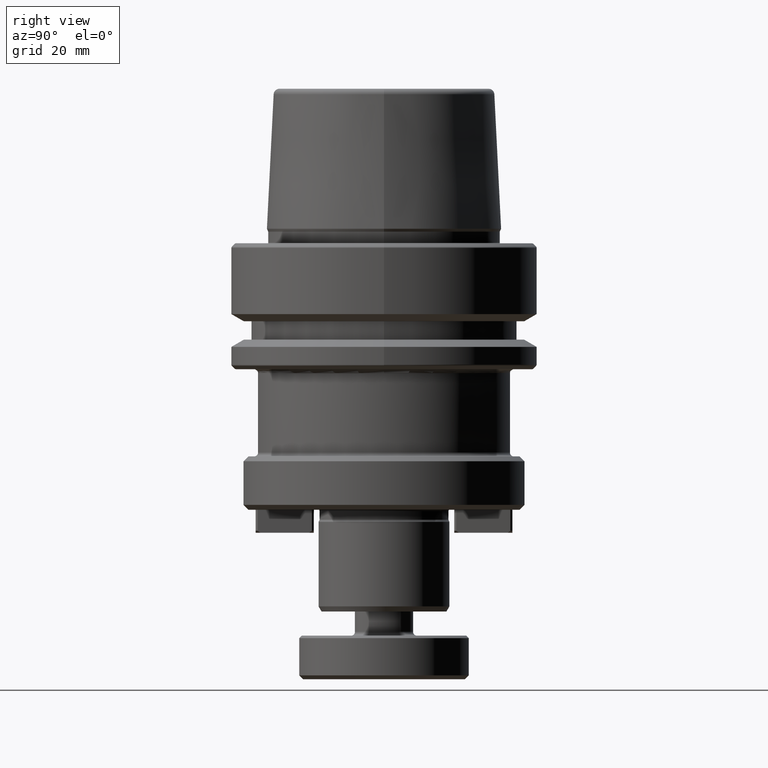
[diagram: clean part render]
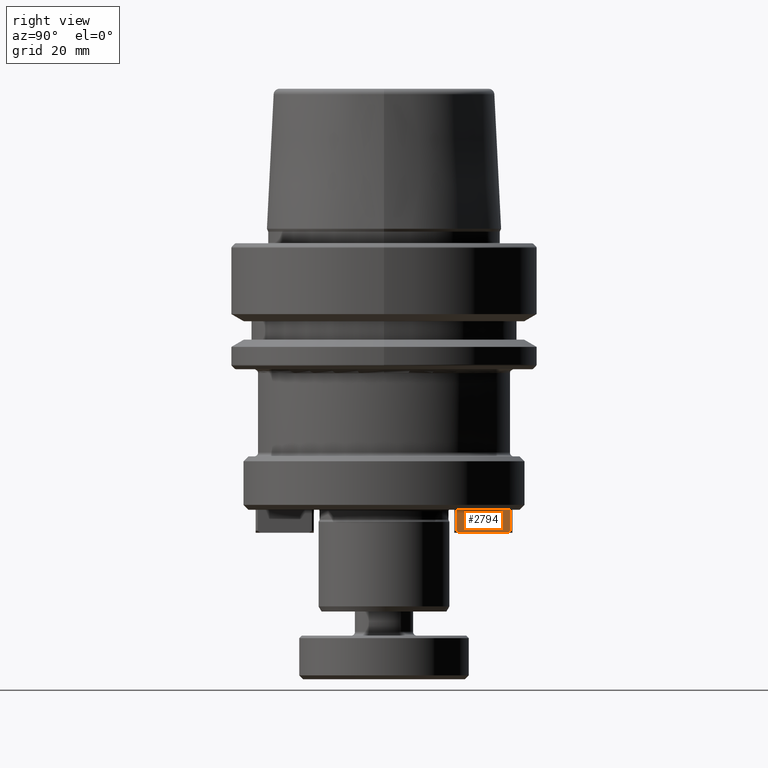
[diagram: same view with one face highlighted and labeled with its STEP entity id]
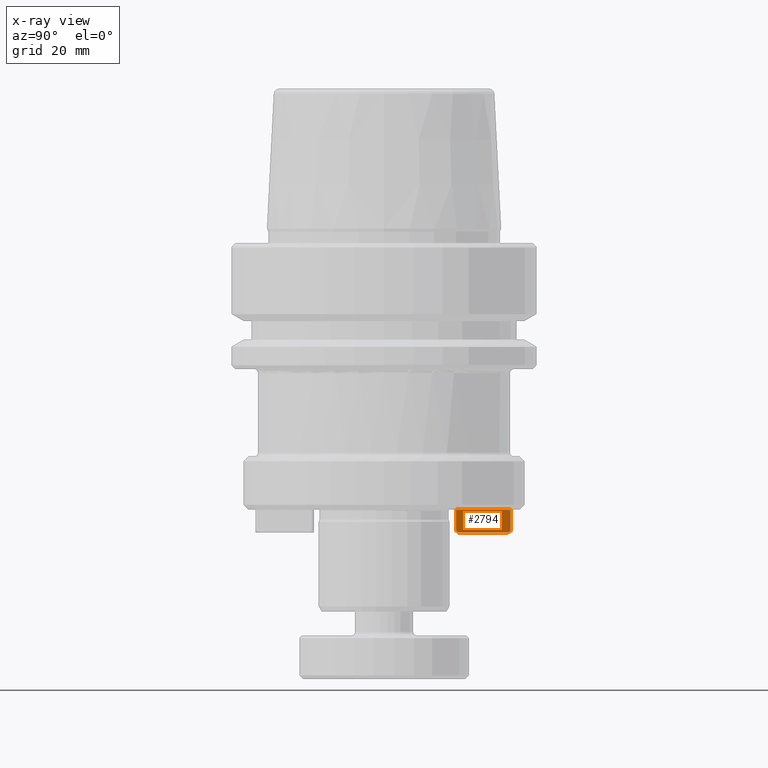
[diagram: x-ray of the same camera — body ghosted, the highlighted face saturated]
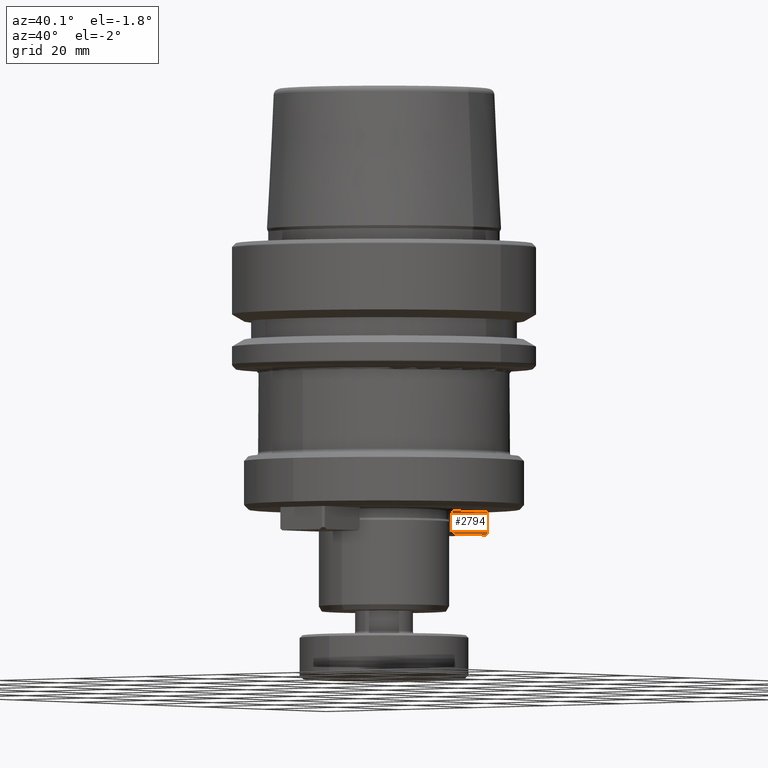
[diagram: same view with one face highlighted and labeled with its STEP entity id]
A machine part, right view. The second image highlights one B-rep face of the part: STEP entity #2794.
The next image is the same camera in x-ray: the body ghosted, the highlighted face saturated — about 0% of this face is hidden behind the body in this view.
A second angle (auxiliary view) of the same face is appended — the face is thin or edge-on in the first view.
In plain terms, the highlighted planar face has unit normal (-1, -0, 0).
Its self-contained STEP definition (entity closure, byte-faithful):
#93 = VECTOR ( 'NONE', #927, 1000.000000000000000 ) ;
#100 = LINE ( 'NONE', #2027, #2508 ) ;
#125 = VERTEX_POINT ( 'NONE', #398 ) ;
#139 = ORIENTED_EDGE ( 'NONE', *, *, #1024, .T. ) ;
#211 = CARTESIAN_POINT ( 'NONE',  ( 6.000000000000000000, 14.90000000000000000, -55.00000000000000000 ) ) ;
#230 = DIRECTION ( 'NONE',  ( 0.0000000000000000000, 0.0000000000000000000, 1.000000000000000000 ) ) ;
#255 = CARTESIAN_POINT ( 'NONE',  ( 6.000000000000000000, 26.10000000000000500, -59.75000000000000700 ) ) ;
#269 = ORIENTED_EDGE ( 'NONE', *, *, #511, .T. ) ;
#352 = FACE_OUTER_BOUND ( 'NONE', #1735, .T. ) ;
#383 = DIRECTION ( 'NONE',  ( -0.0000000000000000000, 1.870988165364012400E-016, 1.000000000000000000 ) ) ;
#398 = CARTESIAN_POINT ( 'NONE',  ( 6.000000000000000000, 26.10000000000000500, -59.35000000000000100 ) ) ;
#440 = PLANE ( 'NONE',  #2413 ) ;
#461 = DIRECTION ( 'NONE',  ( -0.0000000000000000000, 1.870988165364012400E-016, 1.000000000000000000 ) ) ;
#511 = EDGE_CURVE ( 'NONE', #1646, #125, #2250, .T. ) ;
#547 = EDGE_CURVE ( 'NONE', #125, #1768, #2655, .T. ) ;
#596 = ORIENTED_EDGE ( 'NONE', *, *, #1495, .F. ) ;
#638 = DIRECTION ( 'NONE',  ( 0.0000000000000000000, -1.000000000000000000, 6.195440985631451400E-016 ) ) ;
#709 = LINE ( 'NONE', #1863, #93 ) ;
#886 = CARTESIAN_POINT ( 'NONE',  ( 6.000000000000000000, 26.10000000000000500, -59.75000000000000700 ) ) ;
#927 = DIRECTION ( 'NONE',  ( 0.0000000000000000000, -1.000000000000000000, 6.195440985631451400E-016 ) ) ;
#942 = VECTOR ( 'NONE', #383, 1000.000000000000000 ) ;
#1009 = VECTOR ( 'NONE', #2124, 999.9999999999998900 ) ;
#1024 = EDGE_CURVE ( 'NONE', #1025, #2901, #100, .T. ) ;
#1025 = VERTEX_POINT ( 'NONE', #1832 ) ;
#1195 = VECTOR ( 'NONE', #638, 1000.000000000000000 ) ;
#1357 = ORIENTED_EDGE ( 'NONE', *, *, #2500, .F. ) ;
#1359 = DIRECTION ( 'NONE',  ( 0.0000000000000000000, 0.8164965809277260300, -0.5773502691896257300 ) ) ;
#1401 = CARTESIAN_POINT ( 'NONE',  ( 6.000000000000000000, 25.53431457505075000, -59.75000000000001400 ) ) ;
#1419 = CARTESIAN_POINT ( 'NONE',  ( 6.000000000000000000, 15.46568542494926000, -59.75000000000000000 ) ) ;
#1495 = EDGE_CURVE ( 'NONE', #1646, #2901, #709, .T. ) ;
#1538 = CARTESIAN_POINT ( 'NONE',  ( 6.000000000000000000, 14.89999999999999900, -59.75000000000000000 ) ) ;
#1542 = ORIENTED_EDGE ( 'NONE', *, *, #2656, .T. ) ;
#1620 = DIRECTION ( 'NONE',  ( -1.000000000000000000, -0.0000000000000000000, 0.0000000000000000000 ) ) ;
#1642 = LINE ( 'NONE', #1538, #942 ) ;
#1646 = VERTEX_POINT ( 'NONE', #1401 ) ;
#1735 = EDGE_LOOP ( 'NONE', ( #1357, #139, #596, #269, #2915, #1542 ) ) ;
#1768 = VERTEX_POINT ( 'NONE', #2821 ) ;
#1822 = LINE ( 'NONE', #2725, #1195 ) ;
#1832 = CARTESIAN_POINT ( 'NONE',  ( 6.000000000000000000, 14.90000000000000000, -59.34999999999998700 ) ) ;
#1863 = CARTESIAN_POINT ( 'NONE',  ( 6.000000000000000000, 26.10000000000000500, -59.75000000000000700 ) ) ;
#2027 = CARTESIAN_POINT ( 'NONE',  ( 6.000000000000000900, 8.310456949966168200, -54.69048942440037600 ) ) ;
#2030 = VECTOR ( 'NONE', #461, 1000.000000000000000 ) ;
#2124 = DIRECTION ( 'NONE',  ( 0.0000000000000000000, 0.8164965809277275900, 0.5773502691896237300 ) ) ;
#2218 = VERTEX_POINT ( 'NONE', #211 ) ;
#2250 = LINE ( 'NONE', #2399, #1009 ) ;
#2399 = CARTESIAN_POINT ( 'NONE',  ( 6.000000000000000000, 19.02287638336720800, -64.35428210061648700 ) ) ;
#2413 = AXIS2_PLACEMENT_3D ( 'NONE', #886, #1620, #230 ) ;
#2500 = EDGE_CURVE ( 'NONE', #1025, #2218, #1642, .T. ) ;
#2508 = VECTOR ( 'NONE', #1359, 1000.000000000000100 ) ;
#2655 = LINE ( 'NONE', #255, #2030 ) ;
#2656 = EDGE_CURVE ( 'NONE', #1768, #2218, #1822, .T. ) ;
#2725 = CARTESIAN_POINT ( 'NONE',  ( 6.000000000000000000, 26.10000000000000500, -55.00000000000000700 ) ) ;
#2794 = ADVANCED_FACE ( 'NONE', ( #352 ), #440, .F. ) ;
#2821 = CARTESIAN_POINT ( 'NONE',  ( 6.000000000000000000, 26.10000000000000500, -55.00000000000000700 ) ) ;
#2901 = VERTEX_POINT ( 'NONE', #1419 ) ;
#2915 = ORIENTED_EDGE ( 'NONE', *, *, #547, .T. ) ;